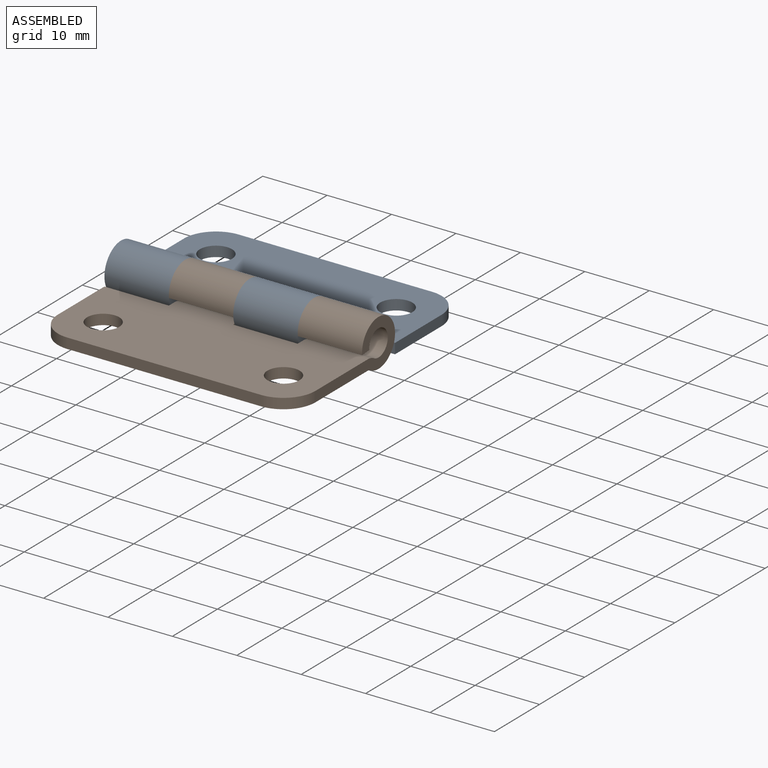
[diagram: assembled view]
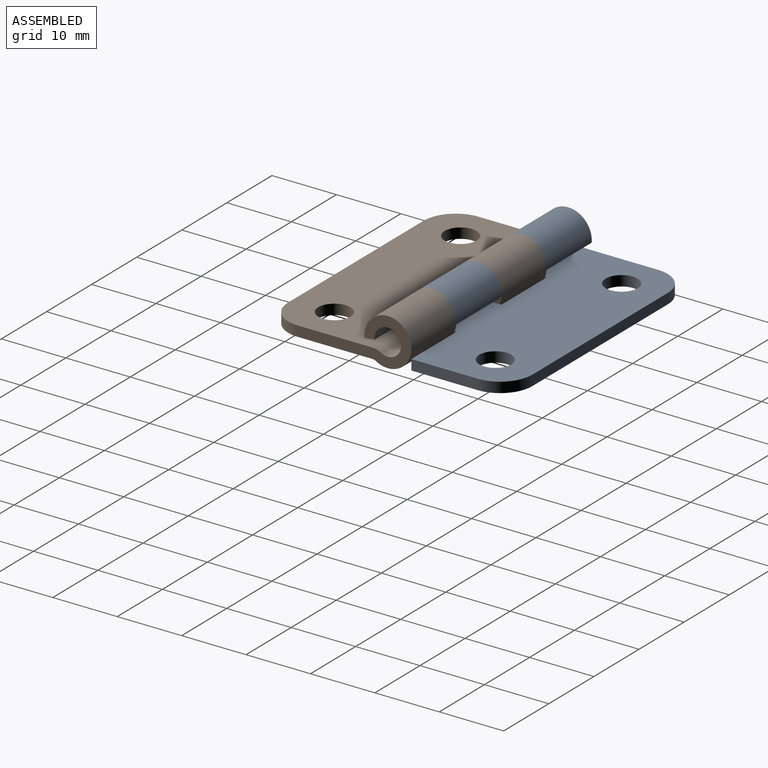
[diagram: assembled view, second angle]
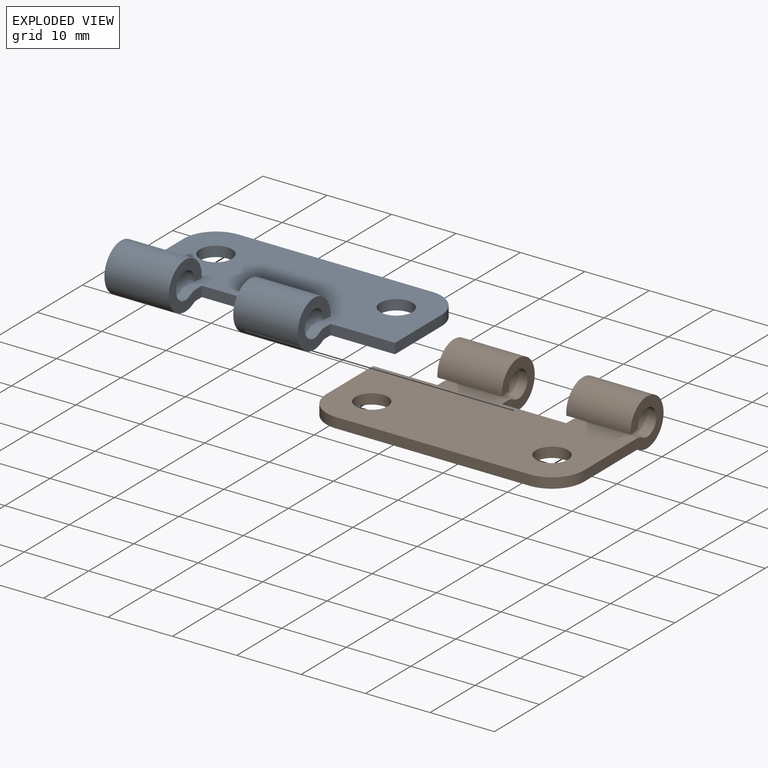
[diagram: exploded view]
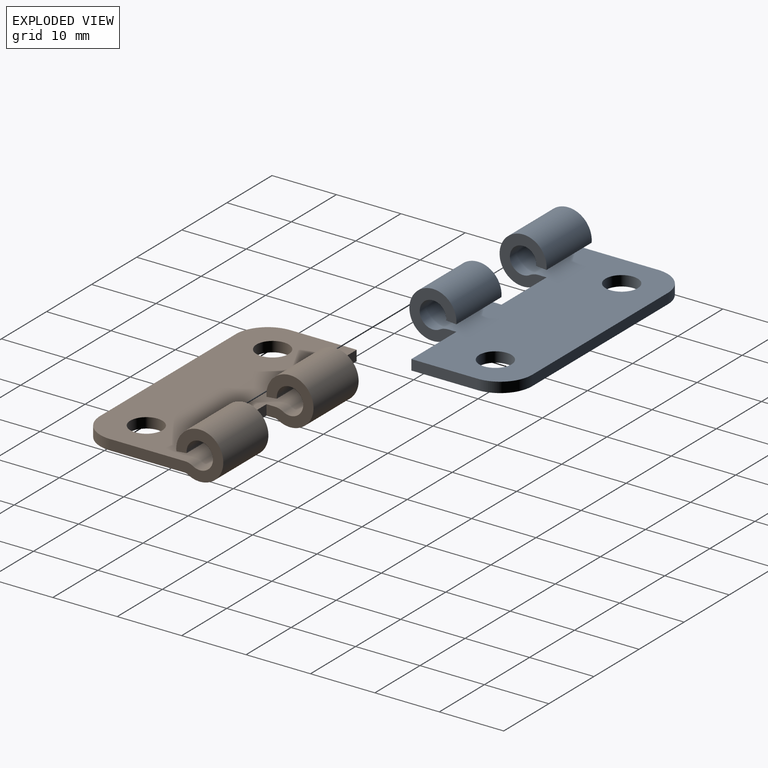
[diagram: exploded view, second angle]
FCSTD DOCUMENT  (FreeCAD 0.22R36807 (Git))
Label: hinge
License: All rights reserved
LicenseURL: http://en.wikipedia.org/wiki/All_rights_reserved
objects: Sketcher::SketchObject×4, PartDesign::Pocket×3, PartDesign::SubShapeBinder×2, App::Link×2, App::Part×2, App::FeaturePython×2, PartDesign::FeaturePython×1, Assembly::JointGroup×1, Assembly::AssemblyObject×1, PartDesign::CoordinateSystem×1, PartDesign::Line×1, PartDesign::Body×1
note: 16 computed .brp shape members not serialized (recipe doc carries the construction recipe); baked Part::Feature solids carry a one-line shape summary decoded from their .brp

FEATURE [Sketcher::SketchObject] Sketch
  FullyConstrained = true
  sketch-geometry (2):
    g0: Circle CenterX=14 CenterY=12.5 CenterZ=0 NormalX=0 NormalY=0 NormalZ=1 AngleXU=0 Radius=2.5
    g1: Circle CenterX=-14 CenterY=12.5 CenterZ=0 NormalX=0 NormalY=0 NormalZ=1 AngleXU=0 Radius=2.5
  constraints (5):
    c: Symmetric(g1,g0,g-2)
    c: DistanceY(g0) = 12.5
    c: DistanceX(g1,g0) = 28
    c: Equal(g1,g0)
    c: Diameter(g0) = 5
FEATURE [Sketcher::SketchObject] Sketch001
  FullyConstrained = true
  Placement = pos=(0,0,0) rot=(0.57735,0.57735,0.57735;2.0944rad)
  sketch-geometry (6):
    g0: ArcOfCircle CenterX=0 CenterY=3 CenterZ=0 NormalX=0 NormalY=0 NormalZ=1 AngleXU=0 Radius=3.65 StartAngle=6.18715 EndAngle=11.6016
    g1: LineSegment StartX=2.07906 StartY=0 StartZ=0 EndX=18.95 EndY=0 EndZ=0
    g2: LineSegment StartX=-3.65 StartY=0 StartZ=0 EndX=-3.65 EndY=3 EndZ=0
    g3: GeomPoint X=0 Y=6.65 Z=0
    g4: LineSegment StartX=0 StartY=1.65 StartZ=0 EndX=18.95 EndY=1.65 EndZ=0
    g5: LineSegment StartX=18.95 StartY=0 StartZ=0 EndX=18.95 EndY=1.65 EndZ=0
  constraints (19):
    c: PointOnObject(g0,g-2)
    c: PointOnObject(g0,g-1)
    c: Coincident(g1,g0)
    c: PointOnObject(g1,g-1)
    c: Diameter(g0) = 7.3
    c: PointOnObject(g2,g-1)
    c: Tangent(g2,g0) = 1.5708
    c: Vertical(g2)
    c: DistanceX(g2,g1) = 22.6
    c: PointOnObject(g3,g0)
    c: PointOnObject(g3,g-2)
    c: PointOnObject(g4,g-2)
    c: Horizontal(g4)
    c: Coincident(g5,g1)
    c: Coincident(g5,g4)
    c: Vertical(g5)
    c: DistanceY(g4,g3) = 5
    c: DistanceY(g4) = 1.65
    c: Distance(g0,g4) = 1
FEATURE [PartDesign::SubShapeBinder] Binder
  BindCopyOnChange = 0
  BindMode = 0
  ClaimChildren = true
  Context = -> Body [Binder.]
  Fuse = false
  MakeFace = true
  OffsetFill = false
  OffsetIntersection = false
  OffsetJoinType = 0
  OffsetOpenResult = false
  PartialLoad = false
  Placement = pos=(0,0,0) rot=(0.57735,0.57735,0.57735;2.0944rad)
  Relative = false
  Support = -> [Sketch001]
  _Version = 2
  expr: Placement = Support[0][0].Placement
FEATURE [PartDesign::FeaturePython] BaseBend  # WARN: FeaturePython — macro-defined, semantics opaque (R4)
  BendSide = 1
  BendSketch = -> Binder
  MidPlane = true
  Reverse = false
  Suppressed = false
  length = 40
  radius = 1
  thickness = 1.6
FEATURE [Sketcher::SketchObject] Sketch002
  AttachmentSupport = -> [XY_Plane]
  ExternalGeometry = -> [Binder]
  FullyConstrained = true
  MapMode = 5
  sketch-geometry (9):
    g0: LineSegment StartX=-20 StartY=0 StartZ=0 EndX=20 EndY=0 EndZ=0
    g1: LineSegment StartX=10 StartY=-3.65 StartZ=0 EndX=20 EndY=-3.65 EndZ=0
    g2: LineSegment StartX=20 StartY=-3.65 StartZ=0 EndX=20 EndY=3.65 EndZ=0
    g3: LineSegment StartX=20 StartY=3.65 StartZ=0 EndX=10 EndY=3.65 EndZ=0
    g4: LineSegment StartX=10 StartY=3.65 StartZ=0 EndX=10 EndY=-3.65 EndZ=0
    g5: LineSegment StartX=-10 StartY=-3.65 StartZ=0 EndX=0 EndY=-3.65 EndZ=0
    g6: LineSegment StartX=0 StartY=-3.65 StartZ=0 EndX=0 EndY=3.65 EndZ=0
    g7: LineSegment StartX=0 StartY=3.65 StartZ=0 EndX=-10 EndY=3.65 EndZ=0
    g8: LineSegment StartX=-10 StartY=3.65 StartZ=0 EndX=-10 EndY=-3.65 EndZ=0
  constraints (25):
    c: PointOnObject(g0,g-1)
    c: Symmetric(g0,g0,g-2)
    c: DistanceX(g0,g0) = 40
    c: Coincident(g1,g2)
    c: Coincident(g2,g3)
    c: Coincident(g3,g4)
    c: Coincident(g4,g1)
    c: Horizontal(g1)
    c: Horizontal(g3)
    c: Vertical(g2)
    c: Vertical(g4)
    c: Coincident(g5,g6)
    c: Coincident(g6,g7)
    c: Coincident(g7,g8)
    c: Coincident(g8,g5)
    c: Horizontal(g5)
    c: Horizontal(g7)
    c: Vertical(g8)
    c: Coincident(g6,g-3)
    c: Coincident(g5,g-3)
    c: Horizontal(g5,g1)
    c: PointOnObject(g0,g2)
    c: Horizontal(g3,g6)
    c: Equal(g3,g7)
    c: DistanceX(g7,g7) = 10
FEATURE [PartDesign::SubShapeBinder] Binder001
  BindCopyOnChange = 0
  BindMode = 0
  ClaimChildren = true
  Context = -> Body [Binder001.]
  Fuse = false
  MakeFace = true
  OffsetFill = false
  OffsetIntersection = false
  OffsetJoinType = 0
  OffsetOpenResult = false
  PartialLoad = false
  Relative = false
  Support = -> [Sketch]
  _Version = 2
FEATURE [App::Link] Body001
  LinkedObject = -> Body
FEATURE [App::Part] Part_Body  label="Part_Body 🔒"
  Group = -> [Body001]
  Origin = -> Origin002
FEATURE [App::FeaturePython] GroundedJoint  # Assembly grounded joint (typed FeaturePython)
  ObjectToGround = -> Part_Body
FEATURE [App::Link] Body002
  LinkedObject = -> Body
FEATURE [App::Part] Part_Body001
  Group = -> [Body002]
  Origin = -> Origin003
  Placement = pos=(-1.8e-15,-3e-16,4e-16) rot=(0,0,-1;3.14159rad)
FEATURE [PartDesign::Pocket] Pocket
  BaseFeature = -> BaseBend
  Direction = (0,0,-1)
  Length = 5
  Length2 = 5
  Midplane = true
  Profile = -> Sketch002
  ReferenceAxis = -> Sketch002 [N_Axis]
  Suppressed = false
  Type = 1
FEATURE [PartDesign::Pocket] Pocket001
  BaseFeature = -> Pocket
  Direction = (0,0,-1)
  Length = 5
  Length2 = 5
  Midplane = true
  Profile = -> Binder001
  Suppressed = false
  Type = 1
FEATURE [App::FeaturePython] Cylindrical  # Assembly joint (typed FeaturePython)
  Activated = true
  Detach1 = false
  Detach2 = false
  Distance = 0
  Element1 = Edge26
  Element2 = Face22
  JointType = 2 (Cylindrical)
  Object1 = Body001
  Object2 = Body002
  Offset = (0,0,0)
  Part1 = -> Part_Body
  Part2 = -> Part_Body001
  Placement1 = pos=(-10,0,3) rot=(-0.57735,-0.57735,0.57735;2.0944rad)
  Placement2 = pos=(10,0,3) rot=(0.57735,-0.57735,0.57735;4.18879rad)
  Rotation = 180
  Vertex1 = Edge26
  Vertex2 = Edge3
FEATURE [Assembly::JointGroup] Joints
  Group = -> [GroundedJoint,Cylindrical]
FEATURE [Assembly::AssemblyObject] Assembly
  Group = -> [Joints,Part_Body,GroundedJoint,Part_Body001,Cylindrical]
  Origin = -> Origin001
  Type = Assembly
FEATURE [Sketcher::SketchObject] Sketch003
  AttachmentSupport = -> [XY_Plane]
  ExternalGeometry = -> [Binder]
  FullyConstrained = true
  MapMode = 5
  sketch-geometry (7):
    g0: LineSegment StartX=-20 StartY=0 StartZ=0 EndX=20 EndY=0 EndZ=0
    g1: ArcOfCircle CenterX=15 CenterY=13.95 CenterZ=0 NormalX=0 NormalY=0 NormalZ=1 AngleXU=0 Radius=5 StartAngle=0 EndAngle=1.5708
    g2: ArcOfCircle CenterX=-15 CenterY=13.95 CenterZ=0 NormalX=0 NormalY=0 NormalZ=1 AngleXU=0 Radius=5 StartAngle=1.5708 EndAngle=3.14159
    g3: LineSegment StartX=-20 StartY=13.95 StartZ=0 EndX=-20 EndY=18.95 EndZ=0
    g4: LineSegment StartX=-20 StartY=18.95 StartZ=0 EndX=-15 EndY=18.95 EndZ=0
    g5: LineSegment StartX=20 StartY=13.95 StartZ=0 EndX=20 EndY=18.95 EndZ=0
    g6: LineSegment StartX=15 StartY=18.95 StartZ=0 EndX=20 EndY=18.95 EndZ=0
  constraints (19):
    c: PointOnObject(g0,g-1)
    c: Symmetric(g0,g0,g-2)
    c: DistanceX(g0,g0) = 40
    c: Tangent(g3,g2) = 1.5708
    c: Coincident(g4,g3)
    c: Tangent(g4,g2) = 1.5708
    c: Tangent(g5,g1) = -1.5708
    c: Vertical(g5)
    c: Coincident(g6,g5)
    c: Tangent(g6,g1) = 1.5708
    c: Horizontal(g6)
    c: Vertical(g3)
    c: Horizontal(g4)
    c: Equal(g2,g1)
    c: Vertical(g5,g0)
    c: Horizontal(g-3,g5)
    c: Horizontal(g5,g3)
    c: Vertical(g3,g0)
    c: Radius(g1) = 5
FEATURE [PartDesign::Pocket] Pocket002
  BaseFeature = -> Pocket001
  Direction = (0,0,-1)
  Length = 5
  Length2 = 5
  Midplane = true
  Profile = -> Sketch003
  ReferenceAxis = -> Sketch003 [N_Axis]
  Suppressed = false
  Type = 1
FEATURE [PartDesign::CoordinateSystem] Local_CS
  AttacherType = Attacher::AttachEngine3D
  AttachmentSupport = -> [XY_Plane]
  MapMode = 5
FEATURE [PartDesign::Line] DatumLine
  AttacherType = Attacher::AttachEngineLine
  AttachmentSupport = -> [Pocket002]
  Length = 20
  MapMode = 19
  Placement = pos=(0,-2e-16,3) rot=(-0.694186,-0.190294,0.694186;2.7655rad)
  ResizeMode = 0
FEATURE [PartDesign::Body] Body
  Group = -> [Binder,BaseBend,Sketch002,Pocket,Binder001,Pocket001,Sketch003,Pocket002,Local_CS,DatumLine]
  Origin = -> Origin
  Tip = -> Pocket002
